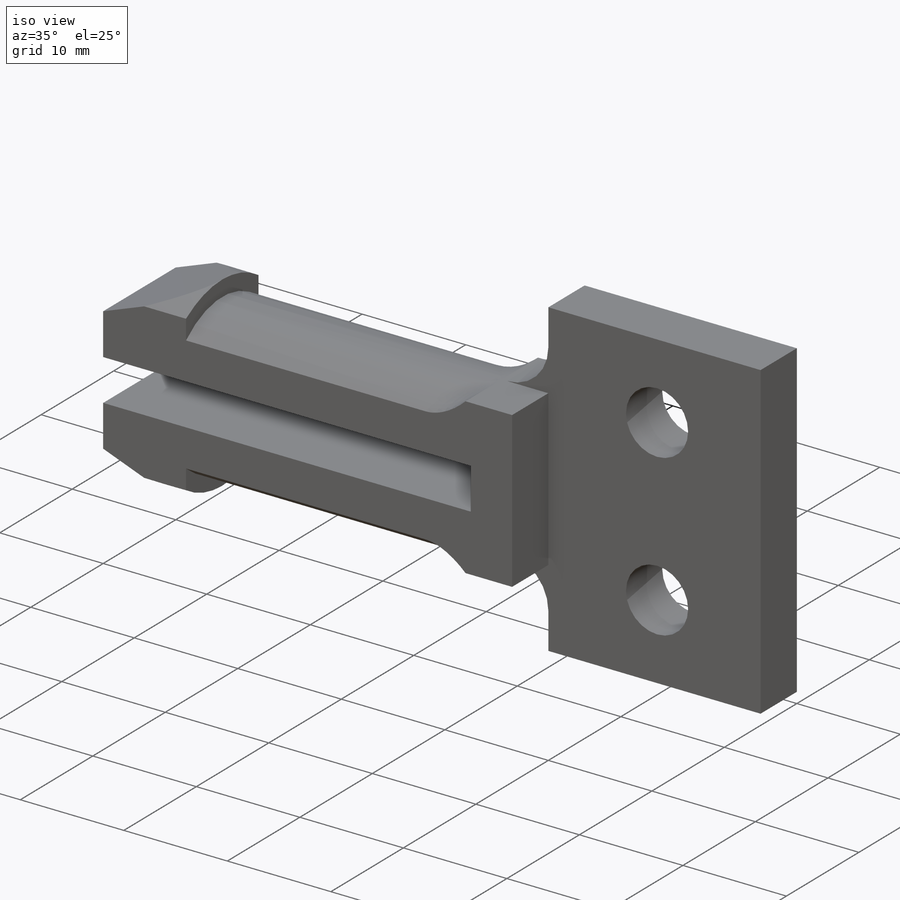
[diagram: iso view]
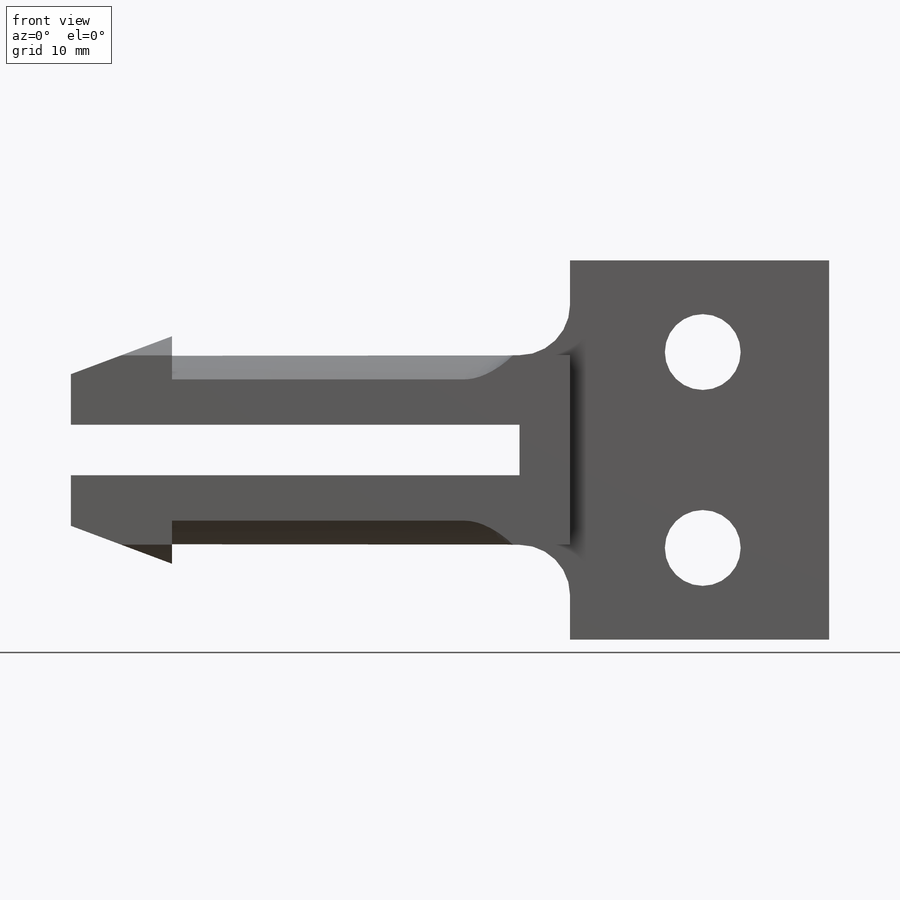
[diagram: front view]
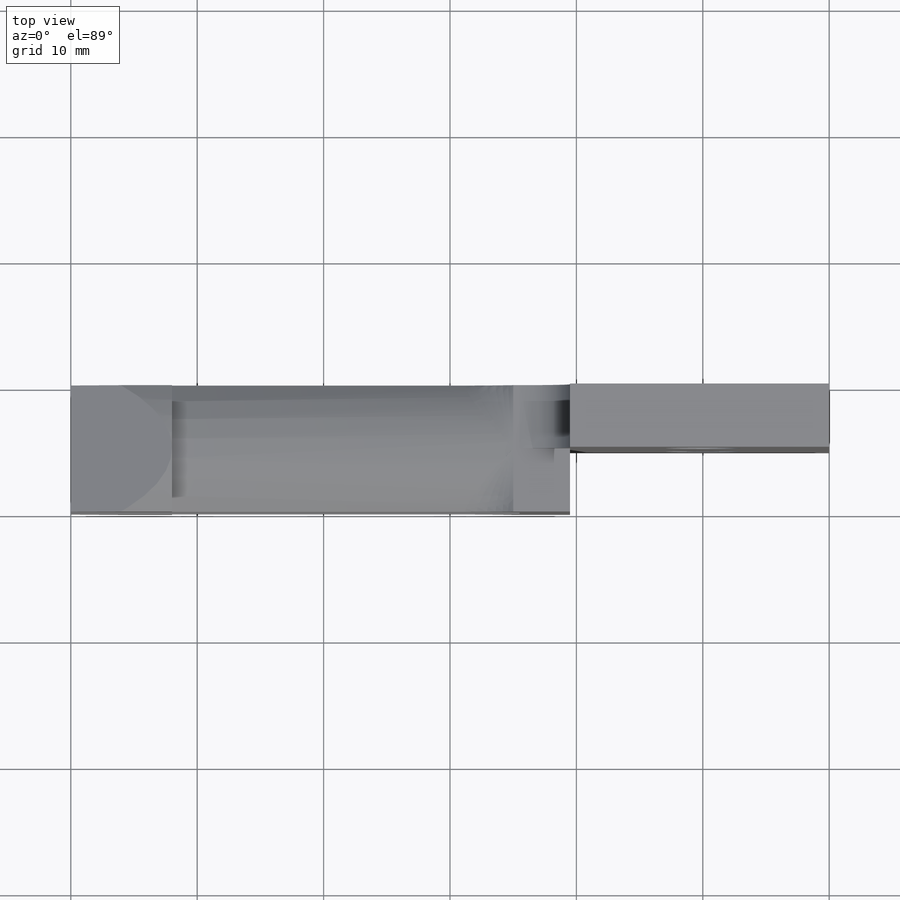
[diagram: top view]
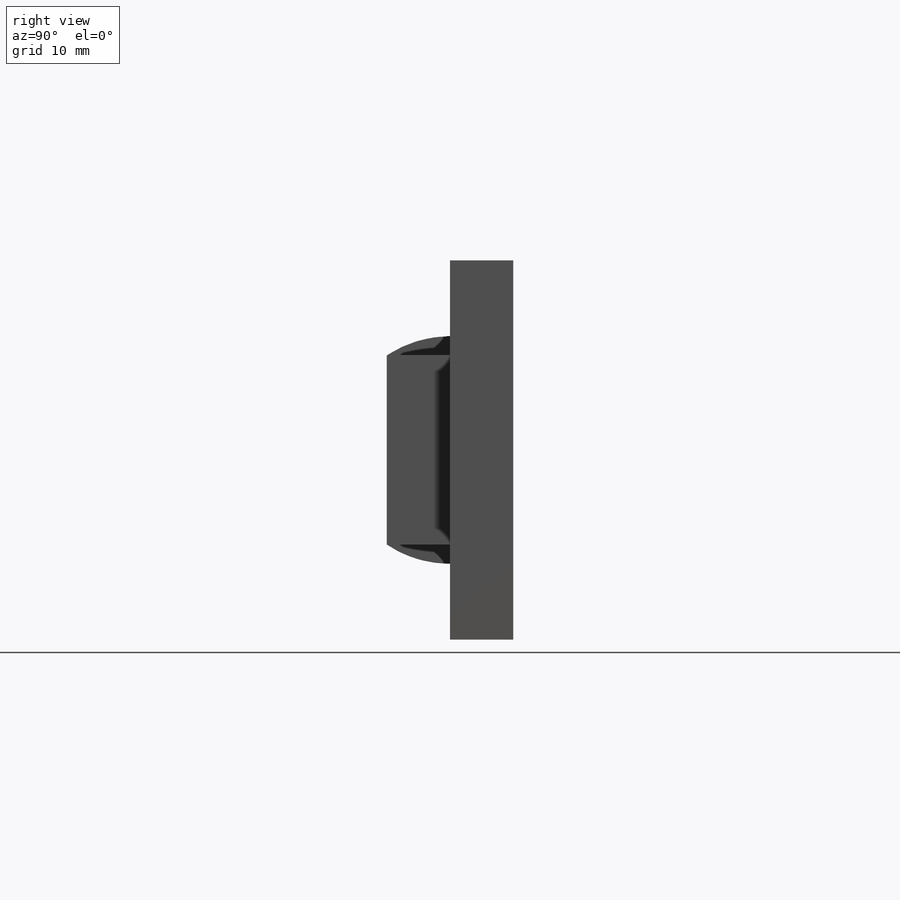
[diagram: right view]
SOLIDWORKS PART (.sldprt)
format: sldprt  version: not decoded by parser v0  size: 232,960 bytes
history: native  units: mm
features: sketch x4, cut_extrude x3, material x1, extrude x1, fillet x1 (+11 scaffold rows collapsed)
feature tree (21):
  scaffold x11  (default folders/planes/origin — collapsed)
  material  "Material <not specified>"
  sketch  "Sketch1"  dims[c1.D3=~5.970144mm c1.D8=15.0mm c1.D10=3.175mm c1.D7=10.0mm c1.D6=6.0mm c1.D1=8.0mm c1.D2=20.0mm c1.D4=20.0mm c1.D5=110.0mm c2.D6=140.0mm c2.D7=20.0mm c2.D9=30.0mm c2.D5=15.0mm c3.D7=12.0mm c3.D9=4.0mm c3.D10=18.0mm c3.D11=8.0mm c3.D12=100.0mm c3.D13=48.0mm c3.D14=15.0mm c3.D15=8.0mm c3.D6=140.0mm c3.D2=60.0mm c3.D3=20.5mm c3.D4=30.0mm c3.D8=15.5mm c4.D12=10.0mm c4.D13=4.0mm]
  extrude  "Boss-Extrude1"  Depth=10mm
  sketch  "Sketch2"
  cut_extrude  "Cut-Extrude1"  Depth=27mm
  sketch  "Sketch3"
  cut_extrude  "Cut-Extrude2"  [1 undecoded]
  sketch  "Sketch4"  dims[D1=5.0mm]
  cut_extrude  "Cut-Extrude3"  [1 undecoded]
  fillet  "Fillet1"  Radius=4mm
decode coverage: 5 of 9 modeling features carry decoded parameters
note: ~ marks probable driven/reference dimensions
note: 2 parameter values undecoded
note: suppression state not decoded; provenance and decode notes live in map.json
